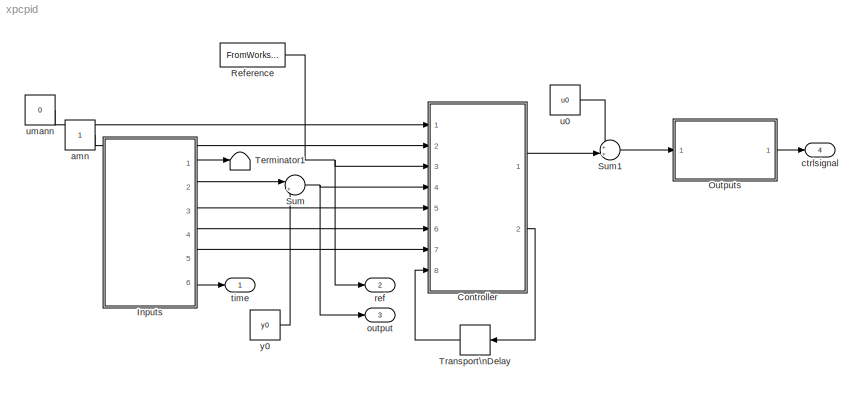
MODEL xpcpid
KIND model
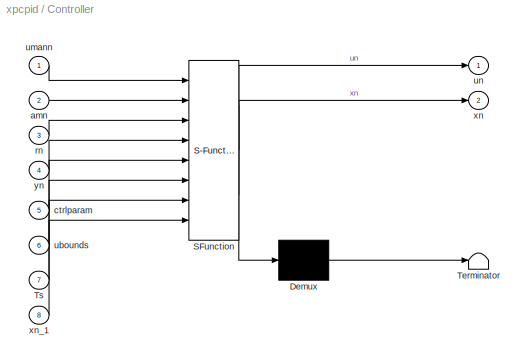
BLOCK [SubSystem] Controller
  FunctionWithSeparateData = off
  MaskDescription = Embedded MATLAB block
  MaskDisplay = disp('computeux');
  MaskHideContents = off
  MaskIconFrame = on
  MaskIconOpaque = off
  MaskIconRotate = none
  MaskIconUnits = autoscale
  MaskPortRotate = default
  MaskSelfModifiable = on
  MaskType = Stateflow
  MinAlgLoopOccurrences = off
  Opaque = off
  PermitHierarchicalResolution = ExplicitOnly
  Ports = [8, 2]
  PropExecContextOutsideSubsystem = off
  RTWSystemCode = Auto
  RequestExecContextInheritance = off
BLOCK [Demux] Controller/ Demux 
  Outputs = 1
  Ports = [1, 1]
BLOCK [S-Function] Controller/ SFunction 
  EnableBusSupport = on
  FunctionName = sf_sfun
  PortCounts = [8 3]
  Ports = [8, 3]
  Tag = Stateflow S-Function xpcpid 2
BLOCK [Terminator] Controller/ Terminator 
BLOCK [Inport] Controller/Ts
  IconDisplay = Port number
  Port = 7
BLOCK [Inport] Controller/amn
  IconDisplay = Port number
  Port = 2
BLOCK [Inport] Controller/ctrlparam
  IconDisplay = Port number
  Port = 5
BLOCK [Inport] Controller/rn
  IconDisplay = Port number
  Port = 3
BLOCK [Inport] Controller/ubounds
  IconDisplay = Port number
  Port = 6
BLOCK [Inport] Controller/umann
  IconDisplay = Port number
  OutDataType = sfix(16)
  OutScaling = 2^0
BLOCK [Outport] Controller/un
  IconDisplay = Port number
  OutDataType = sfix(16)
  OutScaling = 2^0
BLOCK [Outport] Controller/xn
  IconDisplay = Port number
  Port = 2
BLOCK [Inport] Controller/xn_1
  IconDisplay = Port number
  Port = 8
BLOCK [Inport] Controller/yn
  IconDisplay = Port number
  Port = 4
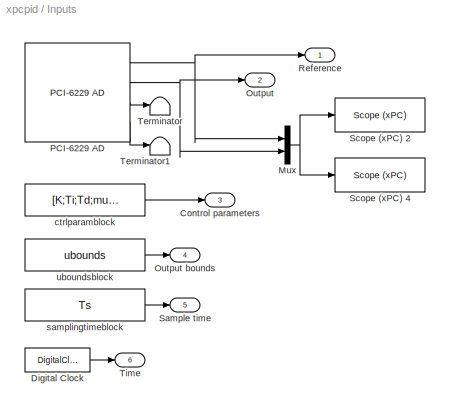
BLOCK [SubSystem] Inputs
  FunctionWithSeparateData = off
  MaskHideContents = off
  MinAlgLoopOccurrences = off
  Opaque = off
  Ports = [0, 6]
  PropExecContextOutsideSubsystem = off
  RTWSystemCode = Auto
  RequestExecContextInheritance = off
BLOCK [Outport] Inputs/Control parameters
  IconDisplay = Port number
  Port = 3
BLOCK [DigitalClock] Inputs/Digital Clock
  SampleTime = Ts
BLOCK [Mux] Inputs/Mux
  DisplayOption = bar
  Inputs = 2
  Ports = [2, 1]
BLOCK [Outport] Inputs/Output
  IconDisplay = Port number
  Port = 2
BLOCK [Outport] Inputs/Output bounds
  IconDisplay = Port number
  Port = 4
BLOCK [Reference] Inputs/PCI-6229 AD  REF=xpcnilib/A//D/M Series/PCI-6229 AD
  Ports = [0, 4]
  SourceBlock = xpcnilib/A//D/M Series/PCI-6229 AD
  SourceType = adnipci6229
  channel = [1:4]
  coupling = [0]
  range = [10]
  sampletime = Ts
  scantime = 5e-6
  slot = -1
BLOCK [Outport] Inputs/Reference
  IconDisplay = Port number
BLOCK [Outport] Inputs/Sample time
  IconDisplay = Port number
  Port = 5
BLOCK [Reference] Inputs/Scope (xPC) 2  REF=xpclib/Misc./Scope (xPC) 
  FunctionWithSeparateData = off
  Ports = [1]
  RTWMemSecDataConstants = Inherit from model
  RTWMemSecDataInternal = Inherit from model
  RTWMemSecDataParameters = Inherit from model
  RTWMemSecFuncExecute = Inherit from model
  RTWMemSecFuncInitTerm = Inherit from model
  ShowPortLabels = FromPortIcon
  SourceBlock = xpclib/Misc./Scope (xPC)
  SourceType = xpcscopeblock
  SystemSampleTime = -1
  autorestart = off
  autostart = on
  filename = data.dat
  formatstr = '%15.6f'
  grid = on
  interleave = 1
  mode = Lazy
  noprepostsamples = 0
  nosamples = 200
  scopeno = 3
  scopetype = Host
  triggerlevel = 0.0
  triggermode = FreeRun
  triggersample = 0
  triggerscope = 1
  triggersignal = 1
  triggerslope = Either
  viewmode = Graphical rolling
  writesize = 512
  ylimits = [0,10]
BLOCK [Reference] Inputs/Scope (xPC) 4  REF=xpclib/Misc./Scope (xPC) 
  FunctionWithSeparateData = off
  Ports = [1]
  RTWMemSecDataConstants = Inherit from model
  RTWMemSecDataInternal = Inherit from model
  RTWMemSecDataParameters = Inherit from model
  RTWMemSecFuncExecute = Inherit from model
  RTWMemSecFuncInitTerm = Inherit from model
  ShowPortLabels = FromPortIcon
  SourceBlock = xpclib/Misc./Scope (xPC)
  SourceType = xpcscopeblock
  SystemSampleTime = -1
  autorestart = off
  autostart = on
  filename = data.dat
  formatstr = '%15.6f'
  grid = on
  interleave = 1
  mode = Lazy
  noprepostsamples = 0
  nosamples = 200
  scopeno = 4
  scopetype = Target
  triggerlevel = 0.0
  triggermode = FreeRun
  triggersample = 0
  triggerscope = 1
  triggersignal = 1
  triggerslope = Either
  viewmode = Graphical rolling
  writesize = 512
  ylimits = [-10,10]
BLOCK [Terminator] Inputs/Terminator
BLOCK [Terminator] Inputs/Terminator1
BLOCK [Outport] Inputs/Time
  IconDisplay = Port number
  Port = 6
BLOCK [Constant] Inputs/ctrlparamblock
  OutDataType = fixdt(1, 16)
  OutScaling = 2^0
  Value = [K;Ti;Td;mu;theta(:)]
BLOCK [Constant] Inputs/samplingtimeblock
  OutDataType = fixdt(1, 16)
  OutScaling = 2^0
  Value = Ts
BLOCK [Constant] Inputs/uboundsblock
  OutDataType = fixdt(1, 16)
  OutScaling = 2^0
  Value = ubounds
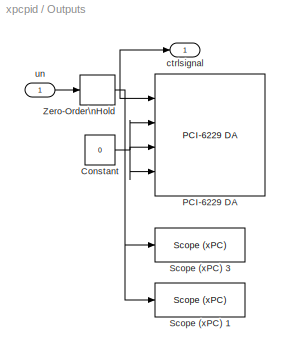
BLOCK [SubSystem] Outputs
  FunctionWithSeparateData = off
  MaskHideContents = off
  MinAlgLoopOccurrences = off
  Opaque = off
  Ports = [1, 1]
  PropExecContextOutsideSubsystem = off
  RTWSystemCode = Auto
  RequestExecContextInheritance = off
BLOCK [Constant] Outputs/Constant
  OutDataType = fixdt(1, 16)
  OutScaling = 2^0
  Value = 0
BLOCK [Reference] Outputs/PCI-6229 DA  REF=xpcnilib/D//A/M Series/PCI-6229 DA
  Ports = [4]
  SourceBlock = xpcnilib/D//A/M Series/PCI-6229 DA
  SourceType = danipci6229
  channel = [1:4]
  initValue = [0]
  reset = [1]
  sampletime = Ts
  slot = -1
BLOCK [Reference] Outputs/Scope (xPC) 1  REF=xpclib/Misc./Scope (xPC) 
  FunctionWithSeparateData = off
  Ports = [1]
  RTWMemSecDataConstants = Inherit from model
  RTWMemSecDataInternal = Inherit from model
  RTWMemSecDataParameters = Inherit from model
  RTWMemSecFuncExecute = Inherit from model
  RTWMemSecFuncInitTerm = Inherit from model
  ShowPortLabels = FromPortIcon
  SourceBlock = xpclib/Misc./Scope (xPC)
  SourceType = xpcscopeblock
  SystemSampleTime = -1
  autorestart = off
  autostart = on
  filename = data.dat
  formatstr = '%15.6f'
  grid = on
  interleave = 1
  mode = Lazy
  noprepostsamples = 0
  nosamples = 200
  scopeno = 2
  scopetype = Target
  triggerlevel = 0.0
  triggermode = FreeRun
  triggersample = 0
  triggerscope = 1
  triggersignal = 1
  triggerslope = Either
  viewmode = Graphical rolling
  writesize = 512
  ylimits = [-10,10]
BLOCK [Reference] Outputs/Scope (xPC) 3  REF=xpclib/Misc./Scope (xPC) 
  FunctionWithSeparateData = off
  Ports = [1]
  RTWMemSecDataConstants = Inherit from model
  RTWMemSecDataInternal = Inherit from model
  RTWMemSecDataParameters = Inherit from model
  RTWMemSecFuncExecute = Inherit from model
  RTWMemSecFuncInitTerm = Inherit from model
  ShowPortLabels = FromPortIcon
  SourceBlock = xpclib/Misc./Scope (xPC)
  SourceType = xpcscopeblock
  SystemSampleTime = -1
  autorestart = off
  autostart = on
  filename = data.dat
  formatstr = '%15.6f'
  grid = on
  interleave = 1
  mode = Lazy
  noprepostsamples = 0
  nosamples = 200
  scopeno = 1
  scopetype = Host
  triggerlevel = 0.0
  triggermode = FreeRun
  triggersample = 0
  triggerscope = 1
  triggersignal = 1
  triggerslope = Either
  viewmode = Graphical rolling
  writesize = 512
  ylimits = [0,10]
BLOCK [ZeroOrderHold] Outputs/Zero-Order\nHold
  SampleTime = Ts
BLOCK [Outport] Outputs/ctrlsignal
  IconDisplay = Port number
  OutDataType = fixdt(1, 16)
  OutScaling = 2^0
  SampleTime = Ts
BLOCK [Inport] Outputs/un
  IconDisplay = Port number
BLOCK [FromWorkspace] Reference
  SampleTime = Ts
  VariableName = ref
  ZeroCross = on
BLOCK [Sum] Sum
  IconShape = round
  InputSameDT = off
  Inputs = |+-
  OutDataType = fixdt(1, 16)
  OutDataTypeMode = Inherit via internal rule
  OutDataTypeStr = Inherit: Inherit via internal rule
  OutScaling = 2^0
  Ports = [2, 1]
  SaturateOnIntegerOverflow = off
BLOCK [Sum] Sum1
  IconShape = round
  InputSameDT = off
  Inputs = ++|
  OutDataType = fixdt(1, 16)
  OutDataTypeMode = Inherit via internal rule
  OutDataTypeStr = Inherit: Inherit via internal rule
  OutScaling = 2^0
  Ports = [2, 1]
  SaturateOnIntegerOverflow = off
BLOCK [Terminator] Terminator1
BLOCK [TransportDelay] Transport\nDelay
  DelayTime = Ts
  FixedBuffer = on
  InitialOutput = zeros(N,1)
BLOCK [Constant] amn
  OutDataType = fixdt(1, 16)
  OutScaling = 2^0
BLOCK [Outport] ctrlsignal
  IconDisplay = Port number
  OutDataType = fixdt(1, 16)
  OutScaling = 2^0
  Port = 4
  SampleTime = Ts
BLOCK [Outport] output
  IconDisplay = Port number
  OutDataType = fixdt(1, 16)
  OutScaling = 2^0
  Port = 3
  SampleTime = Ts
BLOCK [Outport] ref
  IconDisplay = Port number
  OutDataType = fixdt(1, 16)
  OutScaling = 2^0
  Port = 2
  SampleTime = Ts
BLOCK [Outport] time
  IconDisplay = Port number
  OutDataType = fixdt(1, 16)
  OutScaling = 2^0
  SampleTime = Ts
BLOCK [Constant] u0
  OutDataType = fixdt(1, 16)
  OutScaling = 2^0
  SampleTime = Ts
  Value = u0
BLOCK [Constant] umann
  OutDataType = fixdt(1, 16)
  OutScaling = 2^0
  Value = 0
BLOCK [Constant] y0
  OutDataType = fixdt(1, 16)
  OutScaling = 2^0
  SampleTime = Ts
  Value = y0
LINE Controller/ Demux :1 -> Controller/ Terminator :1
LINE Controller/ SFunction :1 -> Controller/ Demux :1
LINE Controller/ SFunction :2 -> Controller/un:1
LINE Controller/ SFunction :3 -> Controller/xn:1
LINE Controller/Ts:1 -> Controller/ SFunction :7
LINE Controller/amn:1 -> Controller/ SFunction :2
LINE Controller/ctrlparam:1 -> Controller/ SFunction :5
LINE Controller/rn:1 -> Controller/ SFunction :3
LINE Controller/ubounds:1 -> Controller/ SFunction :6
LINE Controller/umann:1 -> Controller/ SFunction :1
LINE Controller/xn_1:1 -> Controller/ SFunction :8
LINE Controller/yn:1 -> Controller/ SFunction :4
LINE Controller:1 -> Sum1:2
LINE Controller:2 -> Transport\nDelay:1
LINE Inputs/Digital Clock:1 -> Inputs/Time:1
NET Inputs/Mux:1 -> Inputs/Scope (xPC) 2:1, Inputs/Scope (xPC) 4:1
NET Inputs/PCI-6229 AD:1 -> Inputs/Mux:1, Inputs/Reference:1
NET Inputs/PCI-6229 AD:2 -> Inputs/Mux:2, Inputs/Output:1
LINE Inputs/PCI-6229 AD:3 -> Inputs/Terminator:1
LINE Inputs/PCI-6229 AD:4 -> Inputs/Terminator1:1
LINE Inputs/ctrlparamblock:1 -> Inputs/Control parameters:1
LINE Inputs/samplingtimeblock:1 -> Inputs/Sample time:1
LINE Inputs/uboundsblock:1 -> Inputs/Output bounds:1
LINE Inputs:1 -> Terminator1:1
LINE Inputs:2 -> Sum:1
LINE Inputs:3 -> Controller:5
LINE Inputs:4 -> Controller:6
LINE Inputs:5 -> Controller:7
LINE Inputs:6 -> time:1
NET Outputs/Constant:1 -> Outputs/PCI-6229 DA:2, Outputs/PCI-6229 DA:3, Outputs/PCI-6229 DA:4
NET Outputs/Zero-Order\nHold:1 -> Outputs/PCI-6229 DA:1, Outputs/Scope (xPC) 1:1, Outputs/Scope (xPC) 3:1, Outputs/ctrlsignal:1
LINE Outputs/un:1 -> Outputs/Zero-Order\nHold:1
LINE Outputs:1 -> ctrlsignal:1
NET Reference:1 -> Controller:3, ref:1
LINE Sum1:1 -> Outputs:1
NET Sum:1 -> Controller:4, output:1
LINE Transport\nDelay:1 -> Controller:8
LINE amn:1 -> Controller:2
LINE u0:1 -> Sum1:1
LINE umann:1 -> Controller:1
LINE y0:1 -> Sum:2
note: NET lines group one-source signal fan-out (src -> all destinations, sorted); 1:1 wires keep LINE
CHART Controller states=1 transitions=1
  STATE_LABEL 'eML_blk_kernel()'
